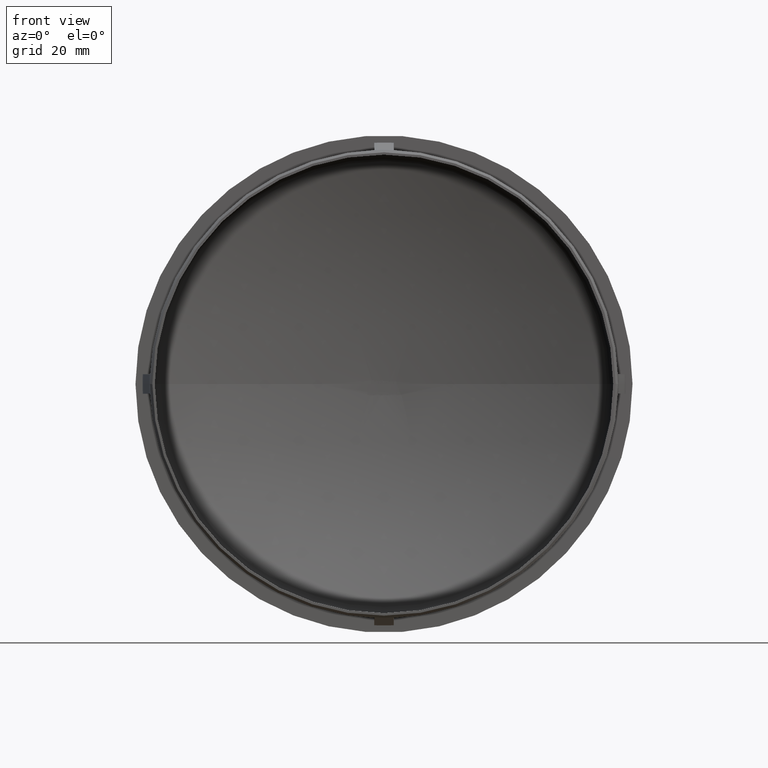
[diagram: clean part render]
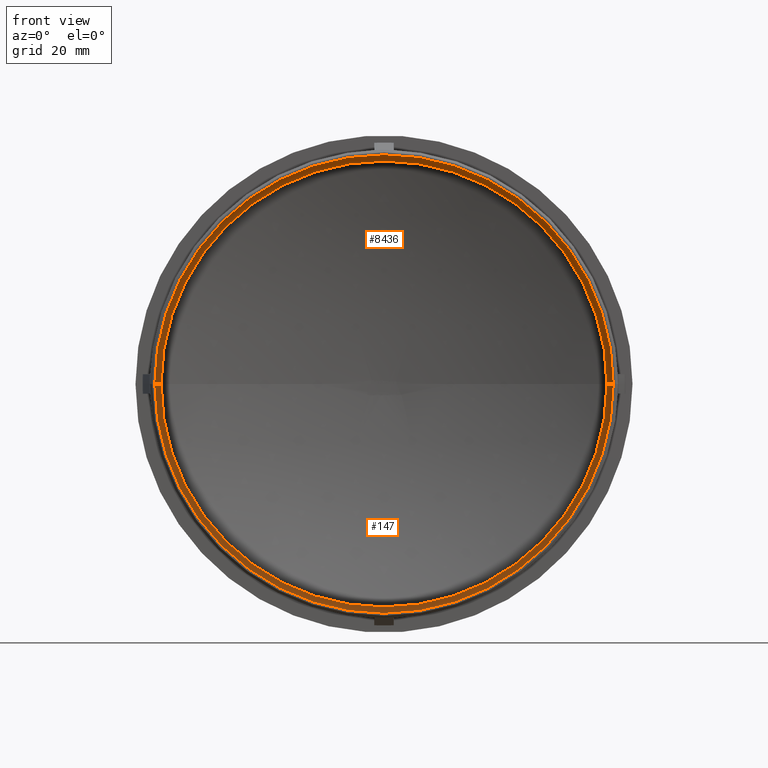
[diagram: same view with one multi-face feature highlighted, each face labeled with its STEP entity id]
A machine part, front view. The highlighted faces form ONE feature: a constant-radius fillet chain: 2 tangent blend faces with common blend radius 2 mm. The faces share edges in the B-rep.
Their STEP definitions:
[1] entity #8436 (Torus):
#298 = AXIS2_PLACEMENT_3D ( 'NONE', #11121, #7719, #5542 ) ;
#305 = EDGE_CURVE ( 'NONE', #12084, #8673, #3535, .T. ) ;
#525 = ORIENTED_EDGE ( 'NONE', *, *, #305, .T. ) ;
#1116 = CARTESIAN_POINT ( 'NONE',  ( -46.84999999999987400, 30.15087385627621000, 5.737470254005351000E-015 ) ) ;
#1138 = DIRECTION ( 'NONE',  ( 5.169545160610235800E-015, -1.000000000000000000, -0.0000000000000000000 ) ) ;
#1145 = DIRECTION ( 'NONE',  ( -1.000000000000000000, 0.0000000000000000000, 0.0000000000000000000 ) ) ;
#2488 = CIRCLE ( 'NONE', #11429, 45.56968640515930200 ) ;
#2548 = ORIENTED_EDGE ( 'NONE', *, *, #10837, .F. ) ;
#2658 = CIRCLE ( 'NONE', #298, 2.000000000000001800 ) ;
#3021 = CARTESIAN_POINT ( 'NONE',  ( 6.125459271374633700E-014, 30.15087385627645500, 0.0000000000000000000 ) ) ;
#3516 = DIRECTION ( 'NONE',  ( 1.000000000000000000, 5.177178324978228000E-015, 0.0000000000000000000 ) ) ;
#3535 = CIRCLE ( 'NONE', #11874, 2.000000000000001800 ) ;
#3565 = CARTESIAN_POINT ( 'NONE',  ( 5.160808918905501900E-014, 32.01689943976368400, 0.0000000000000000000 ) ) ;
#4042 = AXIS2_PLACEMENT_3D ( 'NONE', #8129, #4585, #13819 ) ;
#4585 = DIRECTION ( 'NONE',  ( 5.169545160610235800E-015, -1.000000000000000000, -0.0000000000000000000 ) ) ;
#4617 = CARTESIAN_POINT ( 'NONE',  ( 44.84999999999999400, 30.15087385627669600, 0.0000000000000000000 ) ) ;
#5179 = EDGE_CURVE ( 'NONE', #12084, #11492, #2488, .T. ) ;
#5225 = DIRECTION ( 'NONE',  ( 1.000000000000000000, 5.183805477838918800E-015, 0.0000000000000000000 ) ) ;
#5542 = DIRECTION ( 'NONE',  ( 1.000000000000000000, 0.0000000000000000000, -1.224646799147353500E-016 ) ) ;
#6234 = CIRCLE ( 'NONE', #9020, 46.84999999999993000 ) ;
#6632 = EDGE_LOOP ( 'NONE', ( #2548, #8811, #525, #8295 ) ) ;
#6772 = CARTESIAN_POINT ( 'NONE',  ( 45.56968640515934500, 32.01689943976391100, 0.0000000000000000000 ) ) ;
#7719 = DIRECTION ( 'NONE',  ( 1.224646799147353200E-016, 6.330866933989015100E-031, 1.000000000000000000 ) ) ;
#8129 = CARTESIAN_POINT ( 'NONE',  ( 6.245004513516505500E-014, 30.15087385627646600, 0.0000000000000000000 ) ) ;
#8295 = ORIENTED_EDGE ( 'NONE', *, *, #10820, .T. ) ;
#8436 = ADVANCED_FACE ( 'NONE', ( #13610 ), #12003, .F. ) ;
#8673 = VERTEX_POINT ( 'NONE', #10591 ) ;
#8811 = ORIENTED_EDGE ( 'NONE', *, *, #5179, .F. ) ;
#9020 = AXIS2_PLACEMENT_3D ( 'NONE', #3021, #12052, #5225 ) ;
#10074 = CARTESIAN_POINT ( 'NONE',  ( -45.56968640515990600, 32.01689943976344200, 5.580677059422698500E-015 ) ) ;
#10591 = CARTESIAN_POINT ( 'NONE',  ( 46.84999999999999400, 30.15087385627669600, 0.0000000000000000000 ) ) ;
#10820 = EDGE_CURVE ( 'NONE', #8673, #12226, #6234, .T. ) ;
#10837 = EDGE_CURVE ( 'NONE', #11492, #12226, #2658, .T. ) ;
#11121 = CARTESIAN_POINT ( 'NONE',  ( -44.84999999999986600, 30.15087385627623100, 5.492540894175871200E-015 ) ) ;
#11429 = AXIS2_PLACEMENT_3D ( 'NONE', #3565, #1138, #3516 ) ;
#11492 = VERTEX_POINT ( 'NONE', #10074 ) ;
#11874 = AXIS2_PLACEMENT_3D ( 'NONE', #4617, #14795, #1145 ) ;
#12003 = TOROIDAL_SURFACE ( 'NONE', #4042, 44.84999999999993000, 2.000000000000002700 ) ;
#12052 = DIRECTION ( 'NONE',  ( 5.169545160610235800E-015, -1.000000000000000000, -0.0000000000000000000 ) ) ;
#12084 = VERTEX_POINT ( 'NONE', #6772 ) ;
#12226 = VERTEX_POINT ( 'NONE', #1116 ) ;
#13610 = FACE_OUTER_BOUND ( 'NONE', #6632, .T. ) ;
#13819 = DIRECTION ( 'NONE',  ( 1.000000000000000000, 5.169545160610235800E-015, 0.0000000000000000000 ) ) ;
#14795 = DIRECTION ( 'NONE',  ( 0.0000000000000000000, 0.0000000000000000000, -1.000000000000000000 ) ) ;
[2] entity #147 (Torus):
#147 = ADVANCED_FACE ( 'NONE', ( #14793 ), #6561, .F. ) ;
#298 = AXIS2_PLACEMENT_3D ( 'NONE', #11121, #7719, #5542 ) ;
#305 = EDGE_CURVE ( 'NONE', #12084, #8673, #3535, .T. ) ;
#402 = ORIENTED_EDGE ( 'NONE', *, *, #9693, .F. ) ;
#1007 = DIRECTION ( 'NONE',  ( 1.000000000000000000, 5.177178324978228000E-015, 0.0000000000000000000 ) ) ;
#1116 = CARTESIAN_POINT ( 'NONE',  ( -46.84999999999987400, 30.15087385627621000, 5.737470254005351000E-015 ) ) ;
#1145 = DIRECTION ( 'NONE',  ( -1.000000000000000000, 0.0000000000000000000, 0.0000000000000000000 ) ) ;
#1624 = DIRECTION ( 'NONE',  ( 5.169545160610235800E-015, -1.000000000000000000, -0.0000000000000000000 ) ) ;
#2658 = CIRCLE ( 'NONE', #298, 2.000000000000001800 ) ;
#3535 = CIRCLE ( 'NONE', #11874, 2.000000000000001800 ) ;
#4078 = CARTESIAN_POINT ( 'NONE',  ( 6.125459271374633700E-014, 30.15087385627645500, 0.0000000000000000000 ) ) ;
#4512 = AXIS2_PLACEMENT_3D ( 'NONE', #11914, #1624, #14327 ) ;
#4617 = CARTESIAN_POINT ( 'NONE',  ( 44.84999999999999400, 30.15087385627669600, 0.0000000000000000000 ) ) ;
#5012 = EDGE_CURVE ( 'NONE', #12226, #8673, #8047, .T. ) ;
#5363 = CIRCLE ( 'NONE', #8357, 45.56968640515930200 ) ;
#5426 = CARTESIAN_POINT ( 'NONE',  ( 5.160808918905501900E-014, 32.01689943976368400, 0.0000000000000000000 ) ) ;
#5542 = DIRECTION ( 'NONE',  ( 1.000000000000000000, 0.0000000000000000000, -1.224646799147353500E-016 ) ) ;
#5752 = ORIENTED_EDGE ( 'NONE', *, *, #10837, .T. ) ;
#6561 = TOROIDAL_SURFACE ( 'NONE', #4512, 44.84999999999993000, 2.000000000000002700 ) ;
#6573 = DIRECTION ( 'NONE',  ( 5.169545160610235800E-015, -1.000000000000000000, -0.0000000000000000000 ) ) ;
#6772 = CARTESIAN_POINT ( 'NONE',  ( 45.56968640515934500, 32.01689943976391100, 0.0000000000000000000 ) ) ;
#6855 = AXIS2_PLACEMENT_3D ( 'NONE', #4078, #12053, #14412 ) ;
#7719 = DIRECTION ( 'NONE',  ( 1.224646799147353200E-016, 6.330866933989015100E-031, 1.000000000000000000 ) ) ;
#8047 = CIRCLE ( 'NONE', #6855, 46.84999999999993000 ) ;
#8130 = EDGE_LOOP ( 'NONE', ( #402, #5752, #12036, #9058 ) ) ;
#8357 = AXIS2_PLACEMENT_3D ( 'NONE', #5426, #6573, #1007 ) ;
#8673 = VERTEX_POINT ( 'NONE', #10591 ) ;
#9058 = ORIENTED_EDGE ( 'NONE', *, *, #305, .F. ) ;
#9693 = EDGE_CURVE ( 'NONE', #11492, #12084, #5363, .T. ) ;
#10074 = CARTESIAN_POINT ( 'NONE',  ( -45.56968640515990600, 32.01689943976344200, 5.580677059422698500E-015 ) ) ;
#10591 = CARTESIAN_POINT ( 'NONE',  ( 46.84999999999999400, 30.15087385627669600, 0.0000000000000000000 ) ) ;
#10837 = EDGE_CURVE ( 'NONE', #11492, #12226, #2658, .T. ) ;
#11121 = CARTESIAN_POINT ( 'NONE',  ( -44.84999999999986600, 30.15087385627623100, 5.492540894175871200E-015 ) ) ;
#11492 = VERTEX_POINT ( 'NONE', #10074 ) ;
#11874 = AXIS2_PLACEMENT_3D ( 'NONE', #4617, #14795, #1145 ) ;
#11914 = CARTESIAN_POINT ( 'NONE',  ( 6.245004513516505500E-014, 30.15087385627646600, 0.0000000000000000000 ) ) ;
#12036 = ORIENTED_EDGE ( 'NONE', *, *, #5012, .T. ) ;
#12053 = DIRECTION ( 'NONE',  ( 5.169545160610235800E-015, -1.000000000000000000, -0.0000000000000000000 ) ) ;
#12084 = VERTEX_POINT ( 'NONE', #6772 ) ;
#12226 = VERTEX_POINT ( 'NONE', #1116 ) ;
#14327 = DIRECTION ( 'NONE',  ( 1.000000000000000000, 5.169545160610235800E-015, 0.0000000000000000000 ) ) ;
#14412 = DIRECTION ( 'NONE',  ( 1.000000000000000000, 5.183805477838918800E-015, 0.0000000000000000000 ) ) ;
#14793 = FACE_OUTER_BOUND ( 'NONE', #8130, .T. ) ;
#14795 = DIRECTION ( 'NONE',  ( 0.0000000000000000000, 0.0000000000000000000, -1.000000000000000000 ) ) ;